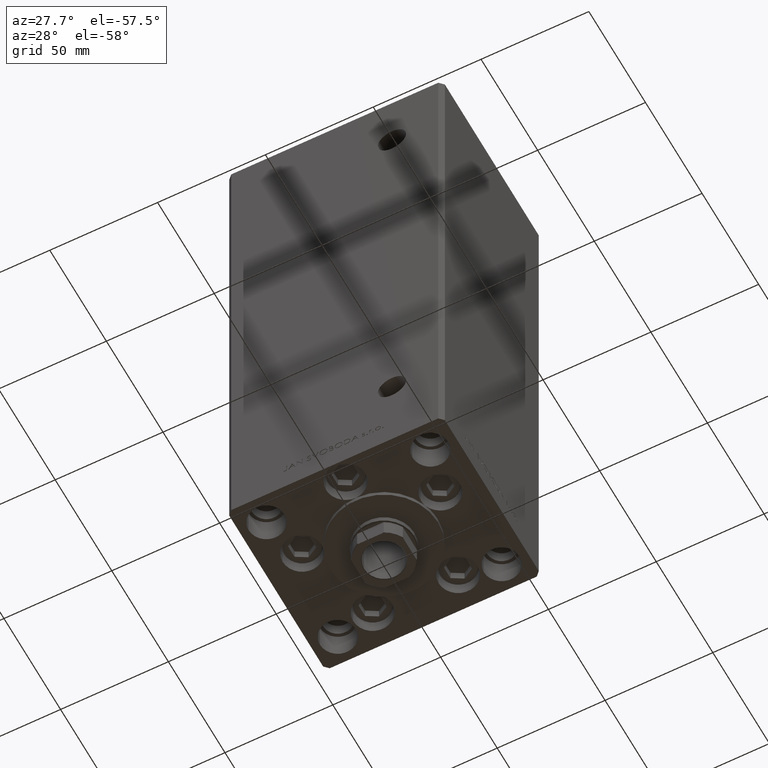
[diagram: clean part render]
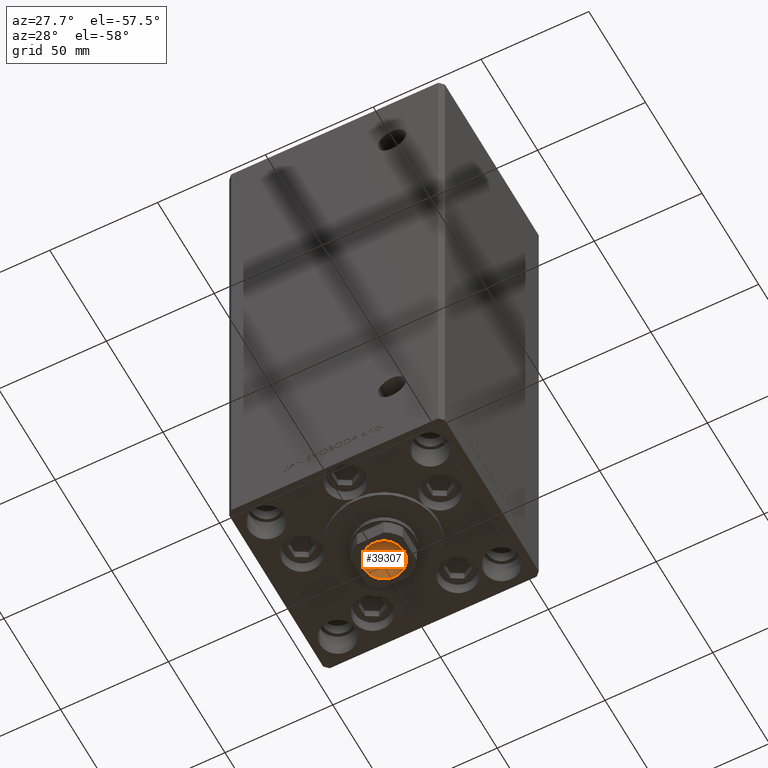
[diagram: same view with one face highlighted and labeled with its STEP entity id]
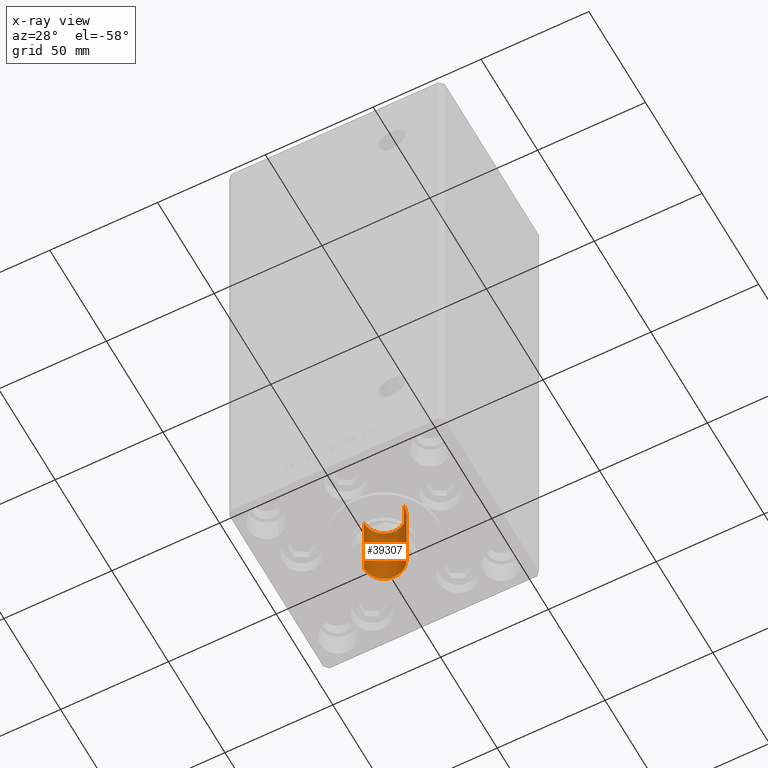
[diagram: x-ray of the same camera — body ghosted, the highlighted face saturated]
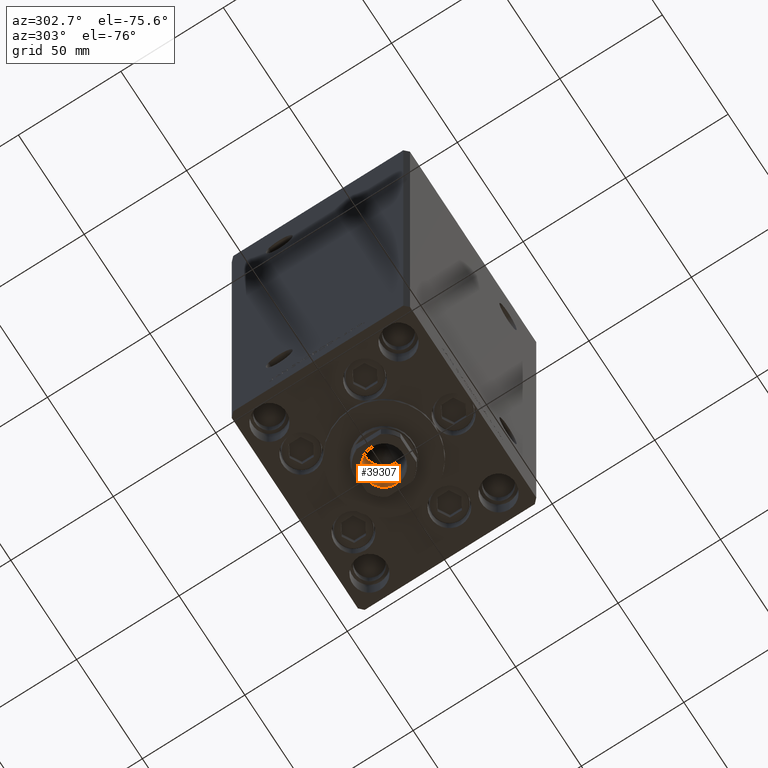
[diagram: same view with one face highlighted and labeled with its STEP entity id]
A machine part, auxiliary view. The second image highlights one B-rep face of the part: STEP entity #39307.
The next image is the same camera in x-ray: the body ghosted, the highlighted face saturated — about 7% of this face is hidden behind the body in this view.
A second angle (auxiliary view) of the same face is appended — the face is thin or edge-on in the first view.
In plain terms, the highlighted cylindrical surface (edge-blend (fillet) strip) has radius 9.25 mm, axis along (0, 0, -1).
Its self-contained STEP definition (entity closure, byte-faithful):
#1200 = CARTESIAN_POINT ( 'NONE',  ( -9.249999999999996447, 1.132798289211301304E-15, 234.9499999999999886 ) ) ;
#1250 = CARTESIAN_POINT ( 'NONE',  ( -9.249999999999996447, 1.132798289211301304E-15, 235.2500000000000284 ) ) ;
#1485 = EDGE_CURVE ( 'NONE', #15649, #5824, #24830, .T. ) ;
#1764 = DIRECTION ( 'NONE',  ( -0.000000000000000000, -0.000000000000000000, 1.000000000000000000 ) ) ;
#1797 = DIRECTION ( 'NONE',  ( -0.000000000000000000, -0.000000000000000000, 1.000000000000000000 ) ) ;
#3664 = CARTESIAN_POINT ( 'NONE',  ( 9.249999999999996447, 0.000000000000000000, 234.9499999999999886 ) ) ;
#5520 = EDGE_CURVE ( 'NONE', #9693, #16990, #6301, .T. ) ;
#5559 = CARTESIAN_POINT ( 'NONE',  ( 0.000000000000000000, 0.000000000000000000, 200.2500000000000000 ) ) ;
#5824 = VERTEX_POINT ( 'NONE', #1200 ) ;
#6301 = CIRCLE ( 'NONE', #19242, 9.249999999999994671 ) ;
#6330 = ORIENTED_EDGE ( 'NONE', *, *, #5520, .F. ) ;
#6404 = VECTOR ( 'NONE', #36215, 1000.000000000000000 ) ;
#9693 = VERTEX_POINT ( 'NONE', #41974 ) ;
#10120 = FACE_OUTER_BOUND ( 'NONE', #27704, .T. ) ;
#12463 = EDGE_CURVE ( 'NONE', #16990, #5824, #28867, .T. ) ;
#14650 = DIRECTION ( 'NONE',  ( 1.000000000000000000, 0.000000000000000000, 0.000000000000000000 ) ) ;
#15649 = VERTEX_POINT ( 'NONE', #3664 ) ;
#16990 = VERTEX_POINT ( 'NONE', #27903 ) ;
#19242 = AXIS2_PLACEMENT_3D ( 'NONE', #5559, #1764, #21522 ) ;
#20539 = CARTESIAN_POINT ( 'NONE',  ( 9.249999999999996447, 0.000000000000000000, 235.2500000000000284 ) ) ;
#21522 = DIRECTION ( 'NONE',  ( 1.000000000000000000, 0.000000000000000000, 0.000000000000000000 ) ) ;
#24830 = CIRCLE ( 'NONE', #40197, 9.249999999999996447 ) ;
#25824 = CARTESIAN_POINT ( 'NONE',  ( 0.000000000000000000, 0.000000000000000000, 235.2500000000000284 ) ) ;
#27704 = EDGE_LOOP ( 'NONE', ( #28958, #6330, #30281, #32693 ) ) ;
#27903 = CARTESIAN_POINT ( 'NONE',  ( -9.249999999999994671, 1.132798289211300909E-15, 200.2500000000000000 ) ) ;
#28867 = LINE ( 'NONE', #1250, #6404 ) ;
#28958 = ORIENTED_EDGE ( 'NONE', *, *, #12463, .F. ) ;
#30281 = ORIENTED_EDGE ( 'NONE', *, *, #47671, .T. ) ;
#30590 = CARTESIAN_POINT ( 'NONE',  ( 0.000000000000000000, 0.000000000000000000, 234.9499999999999886 ) ) ;
#32693 = ORIENTED_EDGE ( 'NONE', *, *, #1485, .T. ) ;
#33674 = CYLINDRICAL_SURFACE ( 'NONE', #39185, 9.249999999999996447 ) ;
#34320 = VECTOR ( 'NONE', #1797, 1000.000000000000000 ) ;
#36215 = DIRECTION ( 'NONE',  ( -0.000000000000000000, -0.000000000000000000, 1.000000000000000000 ) ) ;
#38455 = DIRECTION ( 'NONE',  ( 0.000000000000000000, 0.000000000000000000, 1.000000000000000000 ) ) ;
#39185 = AXIS2_PLACEMENT_3D ( 'NONE', #25824, #41292, #44852 ) ;
#39307 = ADVANCED_FACE ( 'NONE', ( #10120 ), #33674, .F. ) ;
#40197 = AXIS2_PLACEMENT_3D ( 'NONE', #30590, #38455, #14650 ) ;
#41292 = DIRECTION ( 'NONE',  ( -0.000000000000000000, -0.000000000000000000, 1.000000000000000000 ) ) ;
#41974 = CARTESIAN_POINT ( 'NONE',  ( 9.249999999999994671, 0.000000000000000000, 200.2500000000000000 ) ) ;
#44852 = DIRECTION ( 'NONE',  ( 1.000000000000000000, 0.000000000000000000, 0.000000000000000000 ) ) ;
#47659 = LINE ( 'NONE', #20539, #34320 ) ;
#47671 = EDGE_CURVE ( 'NONE', #9693, #15649, #47659, .T. ) ;